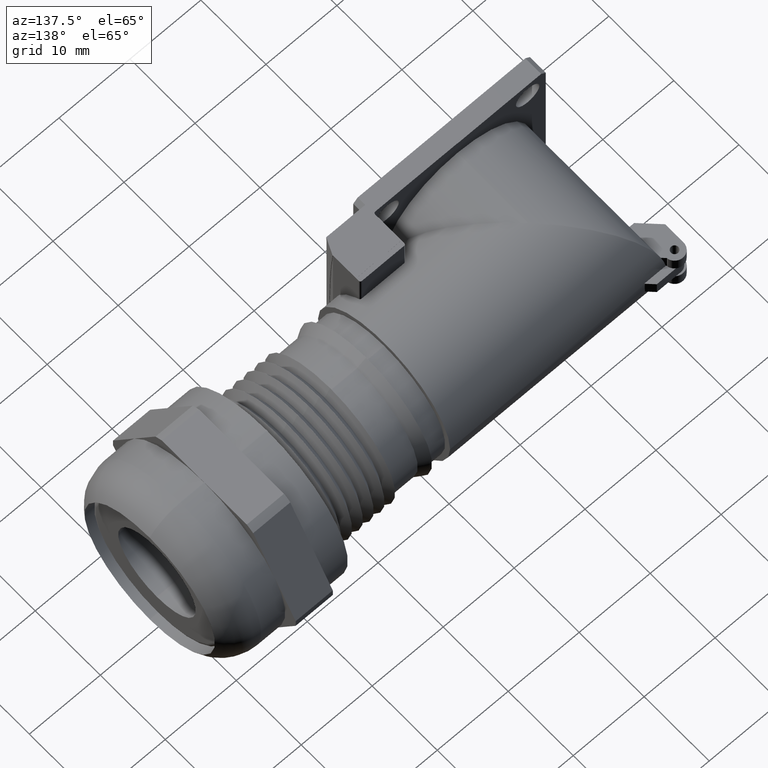
[diagram: clean part render]
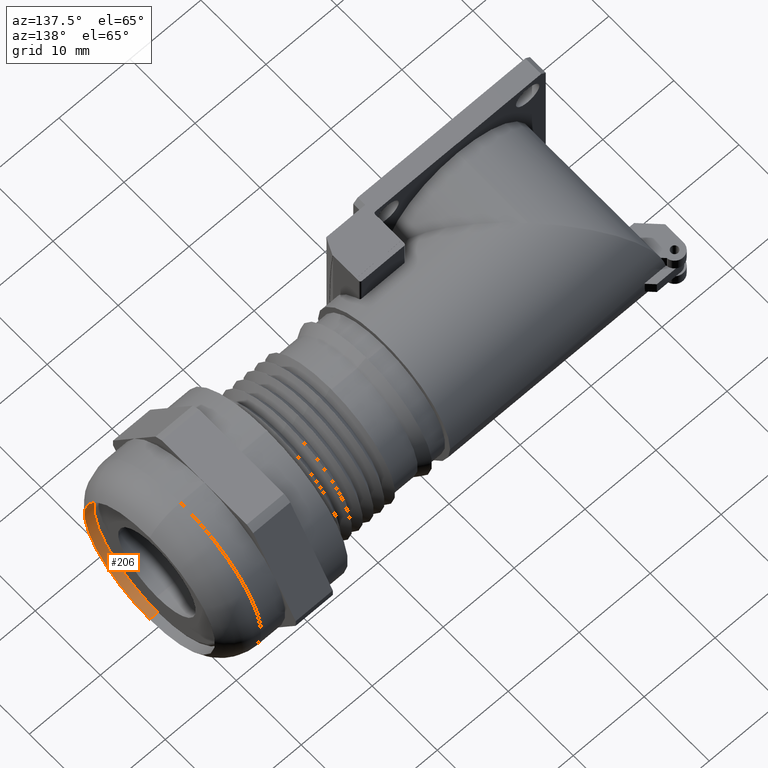
[diagram: same view with one face highlighted and labeled with its STEP entity id]
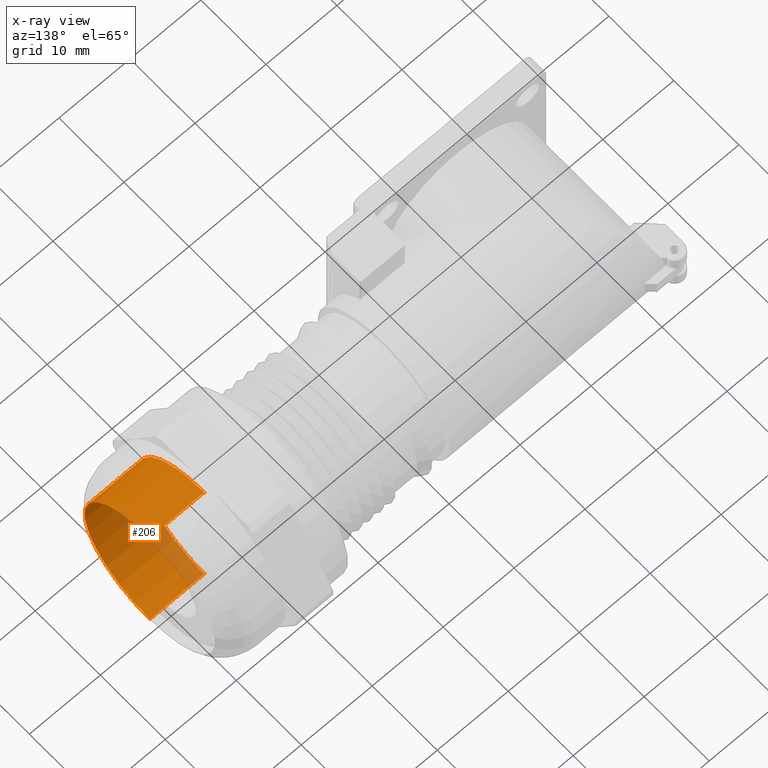
[diagram: x-ray of the same camera — body ghosted, the highlighted face saturated]
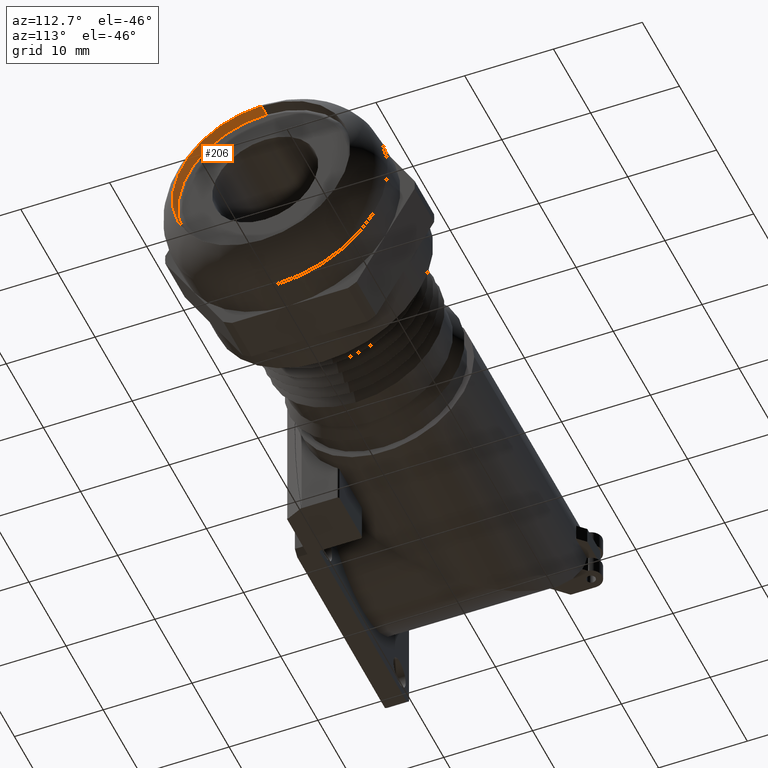
[diagram: same view with one face highlighted and labeled with its STEP entity id]
A machine part, auxiliary view. The second image highlights one B-rep face of the part: STEP entity #206.
The next image is the same camera in x-ray: the body ghosted, the highlighted face saturated — about 13% of this face is hidden behind the body in this view.
A second angle (auxiliary view) of the same face is appended — the face is thin or edge-on in the first view.
In plain terms, the highlighted cylindrical surface (partial cylindrical patch) has radius 10.033 mm, axis along (-1, 0, 0).
Its self-contained STEP definition (entity closure, byte-faithful):
#159 = EDGE_CURVE ( 'NONE', #201, #221, #5525, .T. ) ;
#160 = EDGE_CURVE ( 'NONE', #178, #205, #5521, .T. ) ;
#161 = EDGE_CURVE ( 'NONE', #201, #178, #5517, .T. ) ;
#165 = ORIENTED_EDGE ( 'NONE', *, *, #208, .T. ) ;
#174 = ORIENTED_EDGE ( 'NONE', *, *, #161, .F. ) ;
#178 = VERTEX_POINT ( 'NONE', #2183 ) ;
#201 = VERTEX_POINT ( 'NONE', #2208 ) ;
#204 = ORIENTED_EDGE ( 'NONE', *, *, #159, .T. ) ;
#205 = VERTEX_POINT ( 'NONE', #2266 ) ;
#206 = ADVANCED_FACE ( 'NONE', ( #2265 ), #2263, .F. ) ;
#207 = EDGE_LOOP ( 'NONE', ( #174, #204, #165, #211 ) ) ;
#208 = EDGE_CURVE ( 'NONE', #221, #205, #2259, .T. ) ;
#211 = ORIENTED_EDGE ( 'NONE', *, *, #160, .F. ) ;
#221 = VERTEX_POINT ( 'NONE', #2388 ) ;
#2183 = CARTESIAN_POINT ( 'NONE',  ( 1.300355510000000200, 0.0000000000000000000, 0.3950000000000000200 ) ) ;
#2208 = CARTESIAN_POINT ( 'NONE',  ( 1.300355510000000200, 4.837354856632045600E-017, -0.3950000000000000200 ) ) ;
#2255 = DIRECTION ( 'NONE',  ( 0.0000000000000000000, 0.0000000000000000000, 1.000000000000000000 ) ) ;
#2256 = DIRECTION ( 'NONE',  ( -1.000000000000000000, 0.0000000000000000000, 0.0000000000000000000 ) ) ;
#2257 = CARTESIAN_POINT ( 'NONE',  ( 0.9971533900000001400, 0.0000000000000000000, 0.0000000000000000000 ) ) ;
#2258 = AXIS2_PLACEMENT_3D ( 'NONE', #2257, #2256, #2255 ) ;
#2259 = CIRCLE ( 'NONE', #2258, 0.3949999999999999600 ) ;
#2260 = DIRECTION ( 'NONE',  ( 0.0000000000000000000, 0.0000000000000000000, 1.000000000000000000 ) ) ;
#2261 = DIRECTION ( 'NONE',  ( -1.000000000000000000, 0.0000000000000000000, 0.0000000000000000000 ) ) ;
#2262 = AXIS2_PLACEMENT_3D ( 'NONE', #2264, #2261, #2260 ) ;
#2263 = CYLINDRICAL_SURFACE ( 'NONE', #2262, 0.3950000000000000200 ) ;
#2264 = CARTESIAN_POINT ( 'NONE',  ( -1.449317696122846000, 0.0000000000000000000, 0.0000000000000000000 ) ) ;
#2265 = FACE_OUTER_BOUND ( 'NONE', #207, .T. ) ;
#2266 = CARTESIAN_POINT ( 'NONE',  ( 0.9971533900000001400, 0.0000000000000000000, 0.3949999999999999600 ) ) ;
#2388 = CARTESIAN_POINT ( 'NONE',  ( 0.9971533900000001400, 4.837354856632044300E-017, -0.3949999999999999600 ) ) ;
#5513 = DIRECTION ( 'NONE',  ( 0.0000000000000000000, 0.0000000000000000000, 1.000000000000000000 ) ) ;
#5514 = DIRECTION ( 'NONE',  ( -1.000000000000000000, 0.0000000000000000000, 0.0000000000000000000 ) ) ;
#5515 = CARTESIAN_POINT ( 'NONE',  ( 1.300355510000000200, 0.0000000000000000000, 0.0000000000000000000 ) ) ;
#5516 = AXIS2_PLACEMENT_3D ( 'NONE', #5515, #5514, #5513 ) ;
#5517 = CIRCLE ( 'NONE', #5516, 0.3950000000000000200 ) ;
#5518 = DIRECTION ( 'NONE',  ( -1.000000000000000000, 0.0000000000000000000, 0.0000000000000000000 ) ) ;
#5519 = VECTOR ( 'NONE', #5518, 39.37007874015748100 ) ;
#5520 = CARTESIAN_POINT ( 'NONE',  ( -1.449317696122846000, 0.0000000000000000000, 0.3950000000000000200 ) ) ;
#5521 = LINE ( 'NONE', #5520, #5519 ) ;
#5522 = DIRECTION ( 'NONE',  ( -1.000000000000000000, 0.0000000000000000000, 0.0000000000000000000 ) ) ;
#5523 = VECTOR ( 'NONE', #5522, 39.37007874015748100 ) ;
#5524 = CARTESIAN_POINT ( 'NONE',  ( -1.449317696122846000, 4.837354856632045600E-017, -0.3950000000000000200 ) ) ;
#5525 = LINE ( 'NONE', #5524, #5523 ) ;